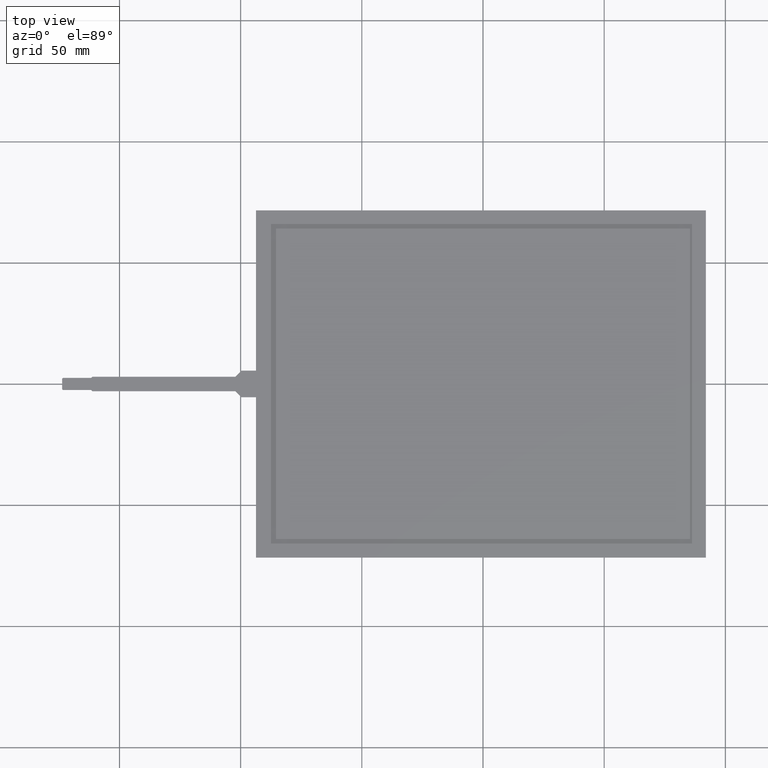
[diagram: clean part render]
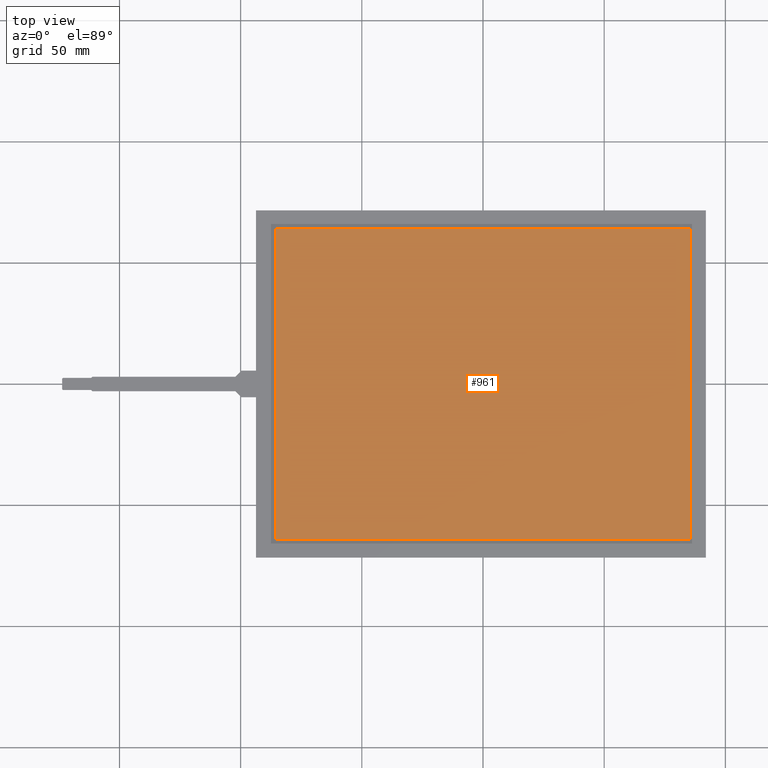
[diagram: same view with one face highlighted and labeled with its STEP entity id]
A machine part, top view. The second image highlights one B-rep face of the part: STEP entity #961.
In plain terms, the highlighted planar face has unit normal (0, 0, 1).
Its self-contained STEP definition (entity closure, byte-faithful):
#51=FACE_OUTER_BOUND('',#105,.T.);
#105=EDGE_LOOP('',(#689,#690,#691,#692));
#143=LINE('',#1344,#269);
#147=LINE('',#1352,#273);
#150=LINE('',#1358,#276);
#153=LINE('',#1363,#279);
#269=VECTOR('',#1088,10.);
#273=VECTOR('',#1094,10.);
#276=VECTOR('',#1099,10.);
#279=VECTOR('',#1104,10.);
#395=VERTEX_POINT('',#1342);
#396=VERTEX_POINT('',#1343);
#399=VERTEX_POINT('',#1351);
#401=VERTEX_POINT('',#1357);
#487=EDGE_CURVE('',#395,#396,#143,.T.);
#491=EDGE_CURVE('',#399,#395,#147,.T.);
#494=EDGE_CURVE('',#401,#399,#150,.T.);
#497=EDGE_CURVE('',#396,#401,#153,.T.);
#689=ORIENTED_EDGE('',*,*,#487,.T.);
#690=ORIENTED_EDGE('',*,*,#497,.T.);
#691=ORIENTED_EDGE('',*,*,#494,.T.);
#692=ORIENTED_EDGE('',*,*,#491,.T.);
#915=PLANE('',#1034);
#961=ADVANCED_FACE('',(#51),#915,.T.);
#1034=AXIS2_PLACEMENT_3D('',#1415,#1150,#1151);
#1088=DIRECTION('',(1.,0.,0.));
#1094=DIRECTION('',(0.,-1.,0.));
#1099=DIRECTION('',(-1.,0.,0.));
#1104=DIRECTION('',(0.,1.,0.));
#1150=DIRECTION('center_axis',(0.,0.,1.));
#1151=DIRECTION('ref_axis',(1.,0.,0.));
#1342=CARTESIAN_POINT('',(-85.45,-64.15,0.));
#1343=CARTESIAN_POINT('',(85.45,-64.15,0.));
#1344=CARTESIAN_POINT('',(-43.15,-64.15,0.));
#1351=CARTESIAN_POINT('',(-85.45,64.15,0.));
#1352=CARTESIAN_POINT('',(-85.45,32.075,0.));
#1357=CARTESIAN_POINT('',(85.45,64.15,0.));
#1358=CARTESIAN_POINT('',(42.3,64.15,0.));
#1363=CARTESIAN_POINT('',(85.45,-32.075,0.));
#1415=CARTESIAN_POINT('Origin',(-0.850000000000017,-4.44089209850063E-15,
0.));